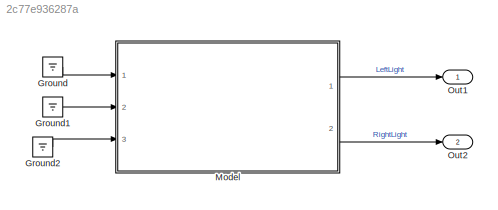
MODEL slx_2c77e936287a
KIND model
CONFIG AbsTol = auto
CONFIG EnableMultiTasking = off
CONFIG FixedStep = auto
CONFIG MaxStep = auto
CONFIG MinStep = auto
CONFIG RelTol = 1e-3
CONFIG SampleTimeConstraint = Unconstrained
CONFIG Solver = VariableStepAuto
CONFIG SolverName = VariableStepAuto
CONFIG StartTime = 0.0
CONFIG StopTime = 10.0
BLOCK [Ground] Ground
BLOCK [Ground] Ground1
BLOCK [Ground] Ground2
BLOCK [ModelReference] Model
  ModelNameDialog = LightControl.slx
  ModelReferenceVersion = 1.22
  Ports = [3, 2]
BLOCK [Outport] Out1
  IconDisplay = Port number
BLOCK [Outport] Out2
  IconDisplay = Port number
  Port = 2
LINE Ground1:1 -> Model:2
LINE Ground2:1 -> Model:3
LINE Ground:1 -> Model:1
LINE Model:1 -> Out1:1
LINE Model:2 -> Out2:1
